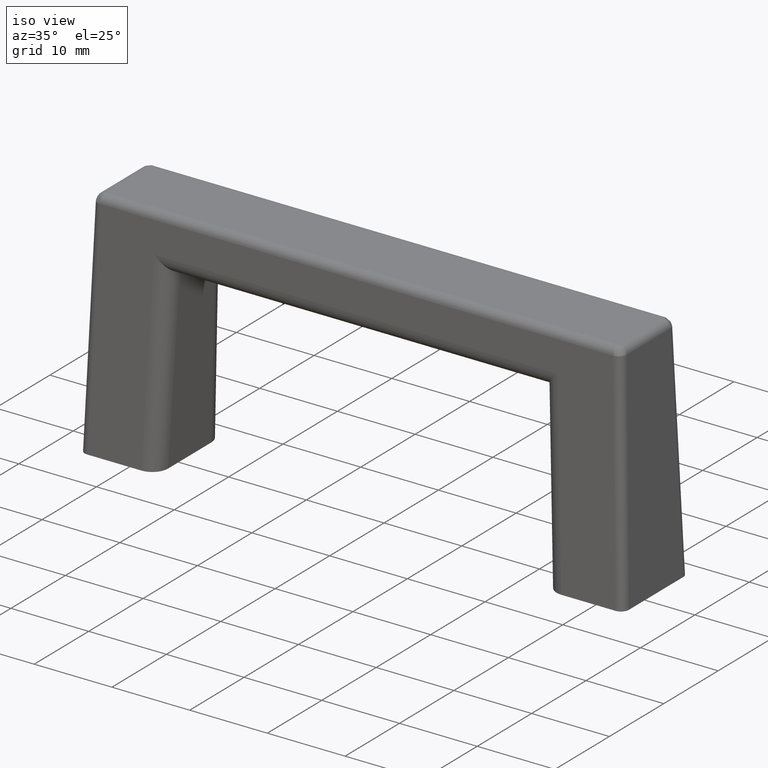
[diagram: clean part render]
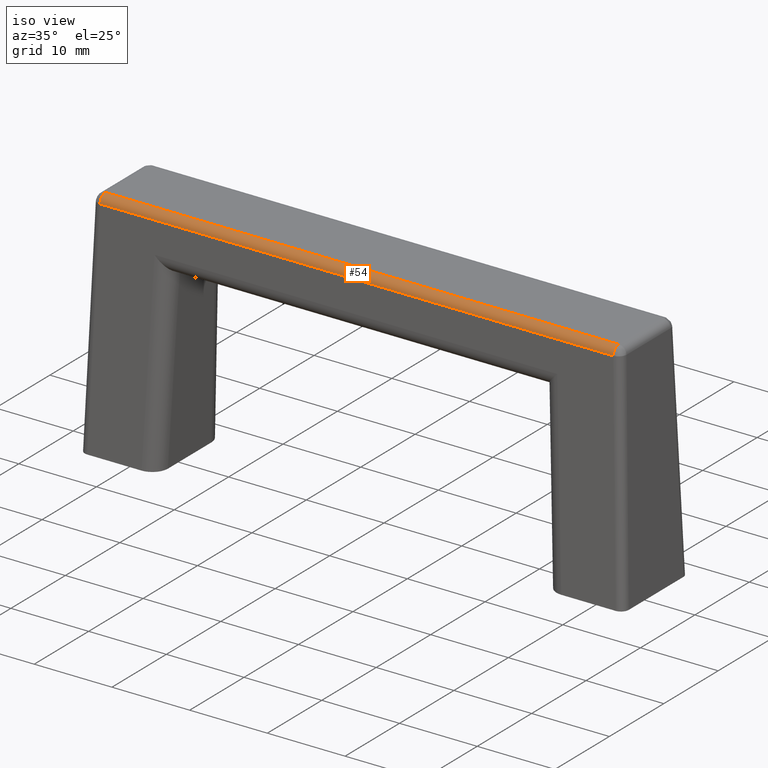
[diagram: same view with one face highlighted and labeled with its STEP entity id]
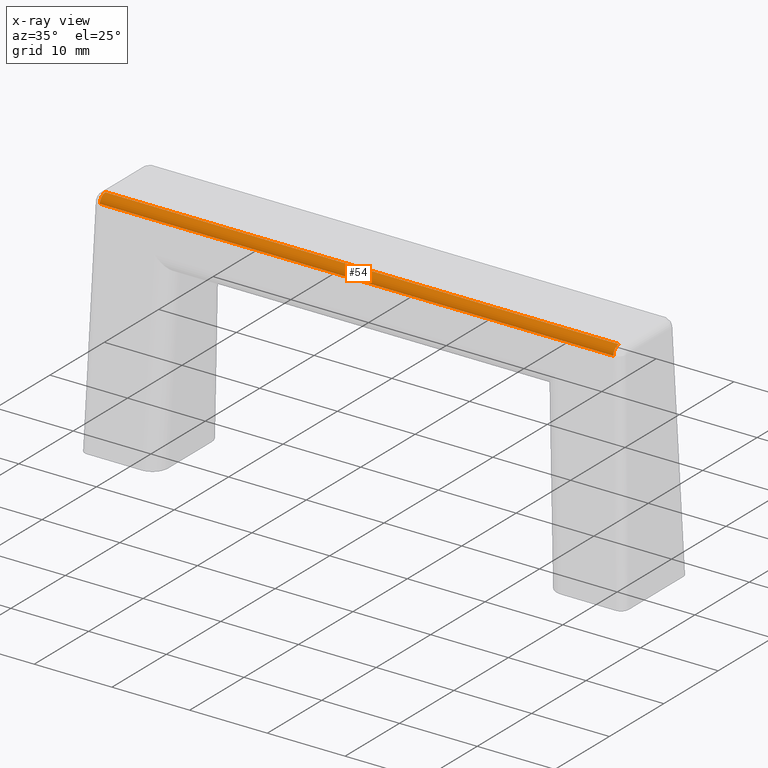
[diagram: x-ray of the same camera — body ghosted, the highlighted face saturated]
A machine part, iso view. The second image highlights one B-rep face of the part: STEP entity #54.
The next image is the same camera in x-ray: the body ghosted, the highlighted face saturated — about 0% of this face is hidden behind the body in this view.
In plain terms, the highlighted cylindrical surface (edge-blend (fillet) strip) has radius 1 mm, axis along (1, 0, -0).
Its self-contained STEP definition (entity closure, byte-faithful):
#54=ADVANCED_FACE('',(#215),#214,.T.);
#214=CYLINDRICAL_SURFACE('',#527,1.00000000000E+00);
#215=FACE_OUTER_BOUND('',#528,.T.);
#524=CARTESIAN_POINT('',(3.47256727590E+01,-4.03254459612E+00,2.90000000000E+01));
#525=DIRECTION('',(1.00000000000E+00,5.16579532901E-15,-3.53142922106E-15));
#526=DIRECTION('',(-5.13478148889E-15,9.99961923064E-01,8.72653549851E-03));
#527=AXIS2_PLACEMENT_3D('',#524,#525,#526);
#528=EDGE_LOOP('',(#707,#708,#709,#710));
#707=ORIENTED_EDGE('',*,*,#858,.T.);
#708=ORIENTED_EDGE('',*,*,#859,.F.);
#709=ORIENTED_EDGE('',*,*,#856,.F.);
#710=ORIENTED_EDGE('',*,*,#860,.F.);
#856=EDGE_CURVE('',#1184,#1204,#1205,.T.);
#858=EDGE_CURVE('',#1217,#1218,#1219,.T.);
#859=EDGE_CURVE('',#1204,#1218,#1225,.T.);
#860=EDGE_CURVE('',#1217,#1184,#1231,.T.);
#1184=VERTEX_POINT('',#1616);
#1204=VERTEX_POINT('',#1628);
#1205=CIRCLE('',#1632,1.00000000000E+00);
#1217=VERTEX_POINT('',#1637);
#1218=VERTEX_POINT('',#1638);
#1219=CIRCLE('',#1642,1.00000000000E+00);
#1225=LINE('',#1643,#1644);
#1231=LINE('',#1646,#1647);
#1616=CARTESIAN_POINT('',(-3.30327445983E+01,-5.03198923562E+00,2.90333228537E+01));
#1628=CARTESIAN_POINT('',(-3.30327445983E+01,-4.03254459612E+00,3.00000000000E+01));
#1629=CARTESIAN_POINT('',(-3.30327445983E+01,-4.03254459612E+00,2.90000000000E+01));
#1630=DIRECTION('',(-1.00000000000E+00,-2.08787310843E-14,1.34786238699E-14));
#1631=DIRECTION('',(-2.13162820728E-14,9.99444639499E-01,-3.33228536847E-02));
#1632=AXIS2_PLACEMENT_3D('',#1629,#1630,#1631);
#1637=CARTESIAN_POINT('',(3.30327445983E+01,-5.03198923562E+00,2.90333228537E+01));
#1638=CARTESIAN_POINT('',(3.30327445983E+01,-4.03254459612E+00,3.00000000000E+01));
#1639=CARTESIAN_POINT('',(3.30327445983E+01,-4.03254459612E+00,2.90000000000E+01));
#1640=DIRECTION('',(-1.00000000000E+00,8.51425534843E-17,2.55366090426E-15));
#1641=DIRECTION('',(-1.23259516441E-32,9.99444639499E-01,-3.33228536847E-02));
#1642=AXIS2_PLACEMENT_3D('',#1639,#1640,#1641);
#1643=CARTESIAN_POINT('',(-3.30327445983E+01,-4.03254459612E+00,3.00000000000E+01));
#1644=VECTOR('',#1645,6.60654891966E+01);
#1645=DIRECTION('',(1.00000000000E+00,0.00000000000E+00,0.00000000000E+00));
#1646=CARTESIAN_POINT('',(3.30327445983E+01,-5.03198923562E+00,2.90333228537E+01));
#1647=VECTOR('',#1648,6.60654891966E+01);
#1648=DIRECTION('',(-1.00000000000E+00,0.00000000000E+00,0.00000000000E+00));